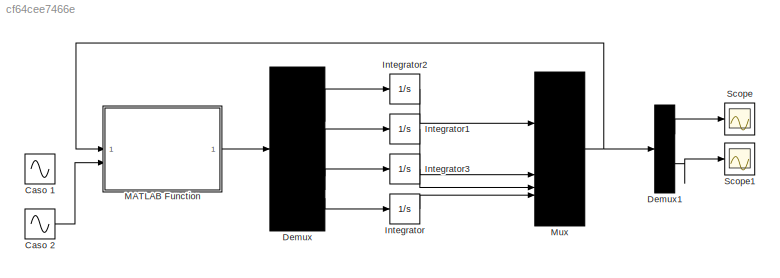
MODEL slx_cf64cee7466e
KIND model
CONFIG AbsTol = auto
CONFIG EnableMultiTasking = off
CONFIG FixedStep = auto
CONFIG MaxStep = auto
CONFIG MinStep = auto
CONFIG RelTol = 1e-3
CONFIG SampleTimeConstraint = Unconstrained
CONFIG SolverName = ode45
CONFIG StartTime = 0.0
CONFIG StopTime = 10.0
BLOCK [Sin] Caso 1
  Amplitude = 0.05
  Frequency = 0.5*pi
  SampleTime = 0
BLOCK [Sin] Caso 2
  Amplitude = 0.05
  Frequency = 20*pi
  SampleTime = 0
BLOCK [Demux] Demux
BLOCK [Demux] Demux1
BLOCK [Integrator] Integrator
BLOCK [Integrator] Integrator1
BLOCK [Integrator] Integrator2
BLOCK [Integrator] Integrator3
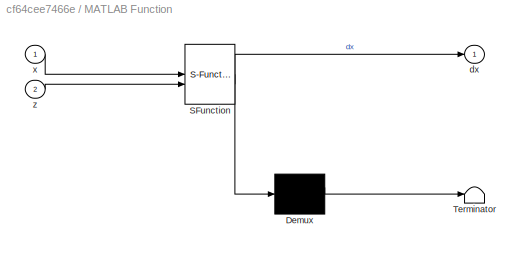
BLOCK [SubSystem] MATLAB Function
  ErrorFcn = Stateflow.Translate.translate
  PermitHierarchicalResolution = ExplicitOnly
  SFBlockType = MATLAB Function
  TreatAsAtomicUnit = on
BLOCK [Demux] MATLAB Function/ Demux 
  Outputs = 1
BLOCK [S-Function] MATLAB Function/ SFunction 
  EnableBusSupport = off
  FunctionName = sf_sfun
  PortCounts = [2 2]
  SFcnIsStateOwnerBlock = off
  SFunctionDeploymentMode = off
  Tag = Stateflow S-Function 2
BLOCK [Terminator] MATLAB Function/ Terminator 
BLOCK [Outport] MATLAB Function/dx
BLOCK [Inport] MATLAB Function/x
BLOCK [Inport] MATLAB Function/z
  Port = 2
BLOCK [Mux] Mux
  DisplayOption = bar
BLOCK [Scope] Scope
  ActiveDisplayYMaximum = 0.0055408205366274032
  ActiveDisplayYMinimum = -0.0044757265597088081
  Floating = off
  GraphicalSettings = {"Style":{"BackgroundColor":[0.12941176470588237,0.12941176470588237,0.12941176470588237],"AxesColor":[0.07058823529411765,0.07058823529411765,0.07058823529411765],"LabelsColor":[0.8509803921568627,0.8509803921568627,0.8509803921568627],"PreserveColors":false,"Visible":[true],"LineStyle":["-"],"LineWidth":[1.5],"BarWidth":[0.9],"LineColor":["auto"],"LineFaceAlpha":[1],"LineEdgeAlpha":[1],"Marker":...<+2004ch>
  MultipleDisplayCache = [{"MaxYLimMag":0.0055408205366274032,"MaxYLimReal":0.0055408205366274032,"MinYLimMag":0,"MinYLimReal":-0.0044757265597088081,"PlotAsMagnitudePhase":false,"ShowGrid":true,"ShowLegend":false,"Title":"%<SignalLabel>","YLabel":""}]
  NumInputPorts = 1
  ScopeFrameLocation = window
  WasSavedAsWebScope = on
  WindowPosition = [746.000000,265.000000,1136.000000,458.000000,]
BLOCK [Scope] Scope1
  ActiveDisplayYMaximum = 0.013153550265285606
  ActiveDisplayYMinimum = -0.0081004107203282542
  DataLoggingVariableName = ScopeData1
  Floating = off
  GraphicalSettings = {"Style":{"BackgroundColor":[0.12941176470588237,0.12941176470588237,0.12941176470588237],"AxesColor":[0.07058823529411765,0.07058823529411765,0.07058823529411765],"LabelsColor":[0.8509803921568627,0.8509803921568627,0.8509803921568627],"PreserveColors":false,"Visible":[true],"LineStyle":["-"],"LineWidth":[1.5],"BarWidth":[0.9],"LineColor":["auto"],"LineFaceAlpha":[1],"LineEdgeAlpha":[1],"Marker":...<+2006ch>
  MultipleDisplayCache = [{"MaxYLimMag":0.013153550265285606,"MaxYLimReal":0.013153550265285606,"MinYLimMag":0,"MinYLimReal":-0.0081004107203282542,"PlotAsMagnitudePhase":false,"ShowGrid":true,"ShowLegend":false,"Title":"%<SignalLabel>","YLabel":""}]
  NumInputPorts = 1
  ScopeFrameLocation = window
  WasSavedAsWebScope = on
  WindowPosition = [1034.000000,652.000000,560.000000,416.000000,]
LINE Caso 2:1 -> MATLAB Function:2
LINE Demux1:1 -> Scope:1
LINE Demux1:2 -> Scope1:1
LINE Demux:1 -> Integrator2:1
LINE Demux:2 -> Integrator1:1
LINE Demux:3 -> Integrator3:1
LINE Demux:4 -> Integrator:1
LINE Integrator1:1 -> Mux:2
LINE Integrator2:1 -> Mux:1
LINE Integrator3:1 -> Mux:3
LINE Integrator:1 -> Mux:4
LINE MATLAB Function:1 -> Demux:1
NET Mux:1 -> Demux1:1, MATLAB Function:1
note: NET lines group one-source signal fan-out (src -> all destinations, sorted); 1:1 wires keep LINE
CHART MATLAB Function states=1 transitions=1
  STATE_LABEL 'eML_blk_kernel()'
  STATE_LABEL 'SCRIPT:\nfunction dx = fcn(x, z)\n\nm1 = 290;\nm2 = 59;\nb1 = 1000;\nk1 = 16182;\nk2 = 19000;\nf  = 0;\n\ndx = zeros(4,1);\n\ndx(1) = x(3);\ndx(2) = x(4);\n\ndx(3) = (-b1*(x(3) - x(4)) - k1*(x(1) - x(2)) + f) / m1;\n\ndx(4) = (b1*(x(3) - x(4)) + k1*(x(1) - x(2)) - k2*(x(2) - z) - f) / m2;'
CHART  states=0 transitions=0
